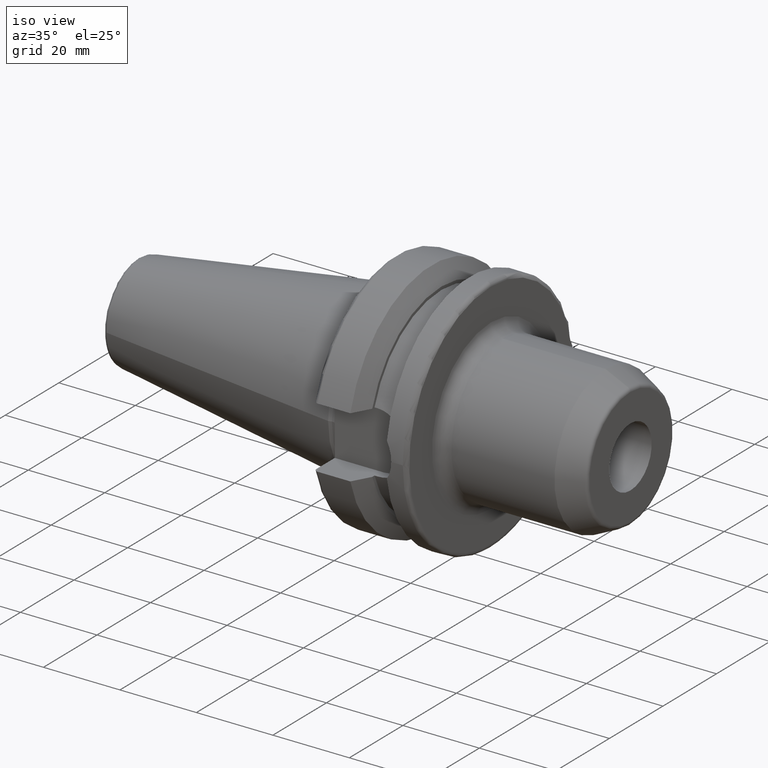
[diagram: clean part render]
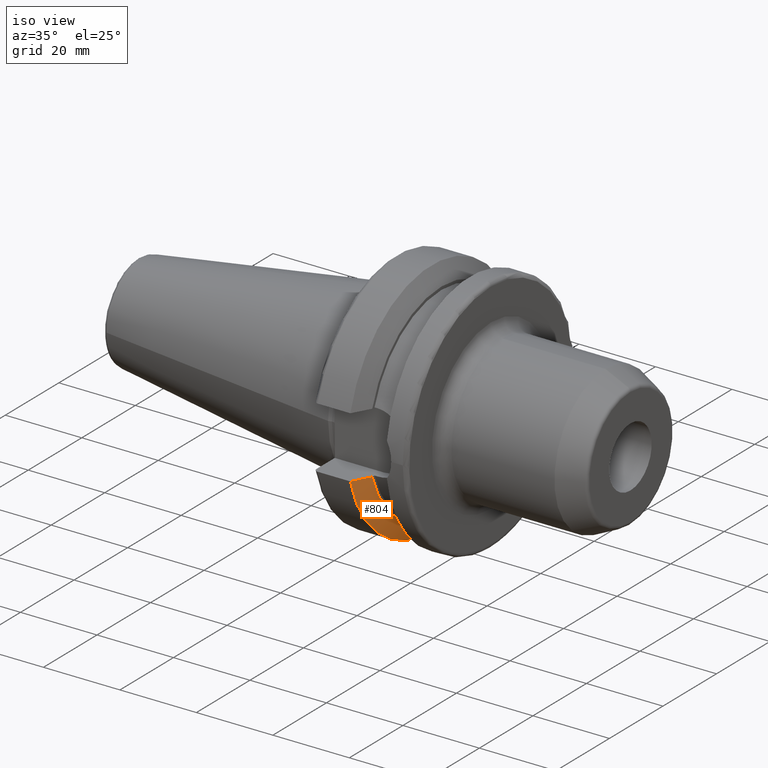
[diagram: same view with one face highlighted and labeled with its STEP entity id]
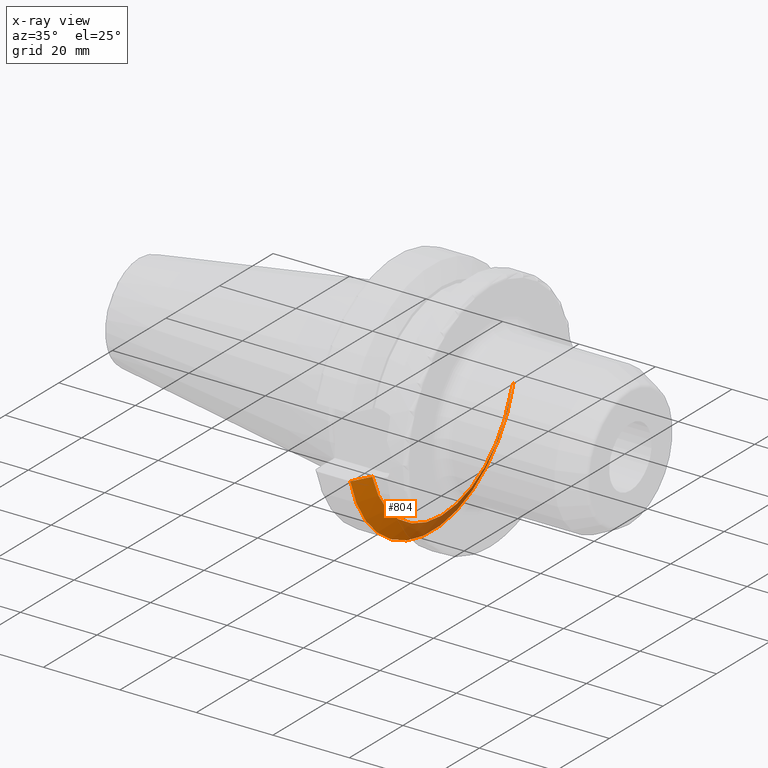
[diagram: x-ray of the same camera — body ghosted, the highlighted face saturated]
A machine part, iso view. The second image highlights one B-rep face of the part: STEP entity #804.
The next image is the same camera in x-ray: the body ghosted, the highlighted face saturated — about 32% of this face is hidden behind the body in this view.
In plain terms, the highlighted conical surface has half-angle 60.125 deg.
Its self-contained STEP definition (entity closure, byte-faithful):
#16=(
BOUNDED_CURVE()
B_SPLINE_CURVE(2,(#1576,#1577,#1578),.UNSPECIFIED.,.F.,.F.)
B_SPLINE_CURVE_WITH_KNOTS((3,3),(0.,0.52358279083281),.UNSPECIFIED.)
CURVE()
GEOMETRIC_REPRESENTATION_ITEM()
RATIONAL_B_SPLINE_CURVE((1.,1.00307360097546,1.))
REPRESENTATION_ITEM('')
);
#17=(
BOUNDED_CURVE()
B_SPLINE_CURVE(2,(#1633,#1634,#1635),.UNSPECIFIED.,.F.,.F.)
B_SPLINE_CURVE_WITH_KNOTS((3,3),(0.,0.52358279083281),.UNSPECIFIED.)
CURVE()
GEOMETRIC_REPRESENTATION_ITEM()
RATIONAL_B_SPLINE_CURVE((1.,1.00307360097546,1.))
REPRESENTATION_ITEM('')
);
#38=CONICAL_SURFACE('',#899,29.2970358274569,1.0493792127616);
#84=CIRCLE('',#898,27.0940716549138);
#85=CIRCLE('',#900,31.5000000000001);
#151=FACE_OUTER_BOUND('',#206,.T.);
#206=EDGE_LOOP('',(#649,#650,#651,#652));
#381=VERTEX_POINT('',#1573);
#382=VERTEX_POINT('',#1575);
#391=VERTEX_POINT('',#1627);
#392=VERTEX_POINT('',#1631);
#470=EDGE_CURVE('',#382,#381,#16,.T.);
#486=EDGE_CURVE('',#382,#391,#84,.T.);
#488=EDGE_CURVE('',#381,#392,#85,.T.);
#489=EDGE_CURVE('',#392,#391,#17,.T.);
#649=ORIENTED_EDGE('',*,*,#470,.T.);
#650=ORIENTED_EDGE('',*,*,#488,.T.);
#651=ORIENTED_EDGE('',*,*,#489,.T.);
#652=ORIENTED_EDGE('',*,*,#486,.F.);
#804=ADVANCED_FACE('',(#151),#38,.T.);
#898=AXIS2_PLACEMENT_3D('',#1628,#1070,#1071);
#899=AXIS2_PLACEMENT_3D('',#1630,#1073,#1074);
#900=AXIS2_PLACEMENT_3D('',#1632,#1075,#1076);
#1070=DIRECTION('center_axis',(1.,0.,0.));
#1071=DIRECTION('ref_axis',(0.,0.,-1.));
#1073=DIRECTION('center_axis',(-1.,0.,0.));
#1074=DIRECTION('ref_axis',(0.,1.,0.));
#1075=DIRECTION('center_axis',(1.,0.,0.));
#1076=DIRECTION('ref_axis',(0.,0.,-1.));
#1573=CARTESIAN_POINT('',(11.5690363073382,-30.4540227227866,-8.05));
#1575=CARTESIAN_POINT('',(14.1,-25.8705666509569,-8.05));
#1576=CARTESIAN_POINT('Ctrl Pts',(14.1,-25.8705666509569,-8.05));
#1577=CARTESIAN_POINT('Ctrl Pts',(12.9374976962938,-27.989970265181,-8.05));
#1578=CARTESIAN_POINT('Ctrl Pts',(11.5690363073382,-30.4540227227866,-8.05));
#1627=CARTESIAN_POINT('',(14.1,25.8705666509569,-8.05));
#1628=CARTESIAN_POINT('Origin',(14.1,0.,0.));
#1630=CARTESIAN_POINT('Origin',(12.8345181536691,0.,0.));
#1631=CARTESIAN_POINT('',(11.5690363073382,30.4540227227866,-8.05));
#1632=CARTESIAN_POINT('Origin',(11.5690363073382,0.,0.));
#1633=CARTESIAN_POINT('Ctrl Pts',(11.5690363073382,30.4540227227866,-8.05));
#1634=CARTESIAN_POINT('Ctrl Pts',(12.9374976962938,27.989970265181,-8.05));
#1635=CARTESIAN_POINT('Ctrl Pts',(14.1,25.8705666509569,-8.05));